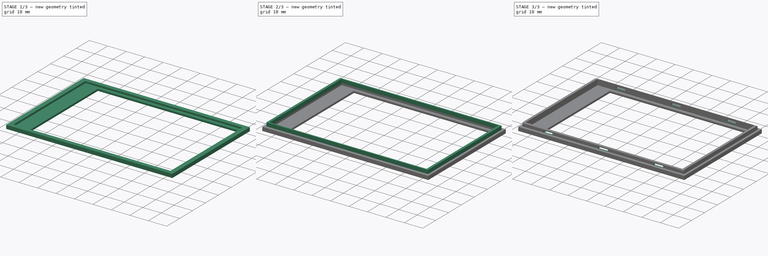
[diagram: build sequence overview — one tinted view per stage of 3, left to right]
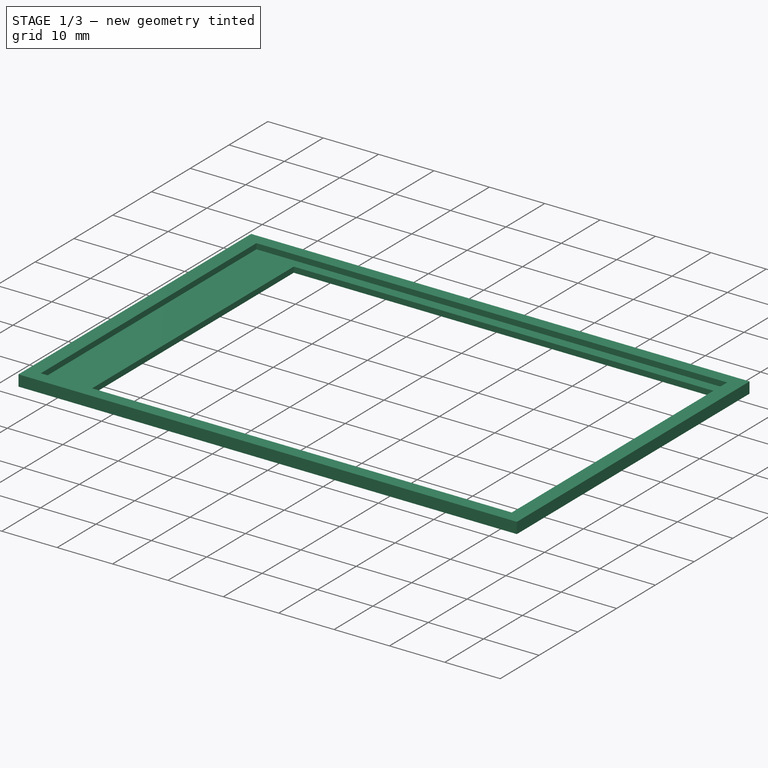
[diagram: stage 1 of 3 — iso view after this stage's code; geometry added in this stage tinted green]
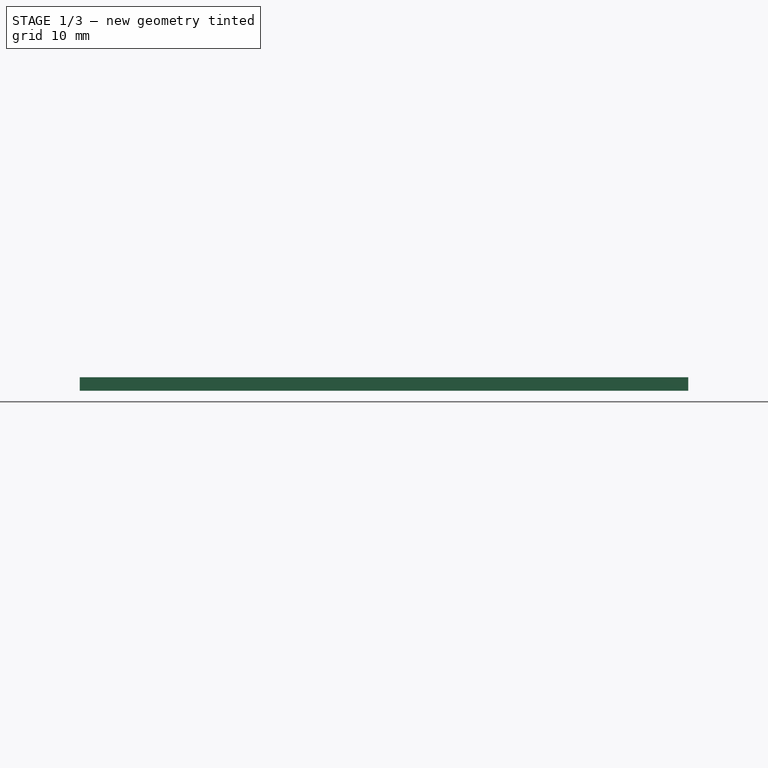
[diagram: stage 1 of 3 — front view after this stage's code; geometry added in this stage tinted green]
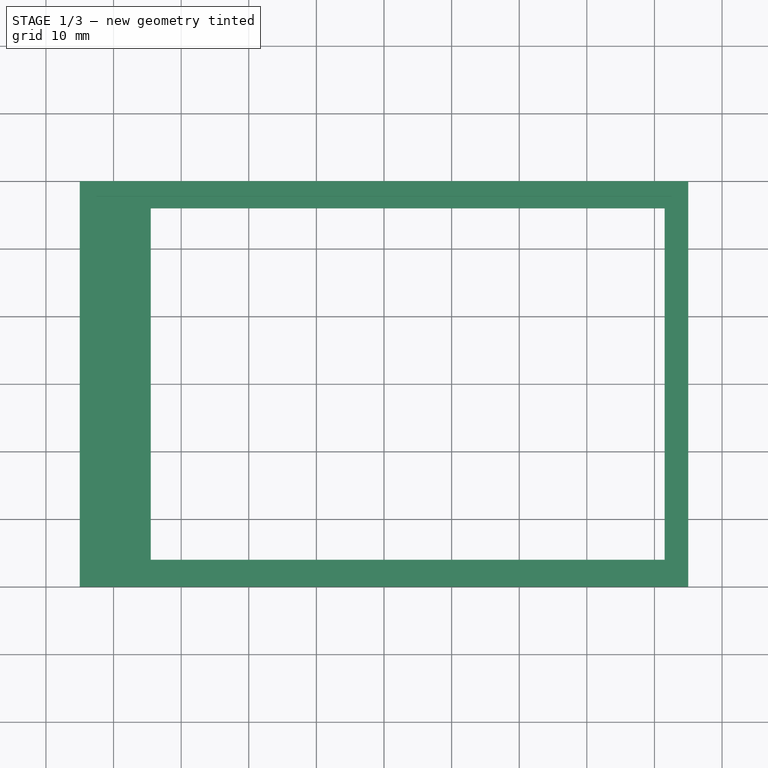
[diagram: stage 1 of 3 — top view after this stage's code; geometry added in this stage tinted green]
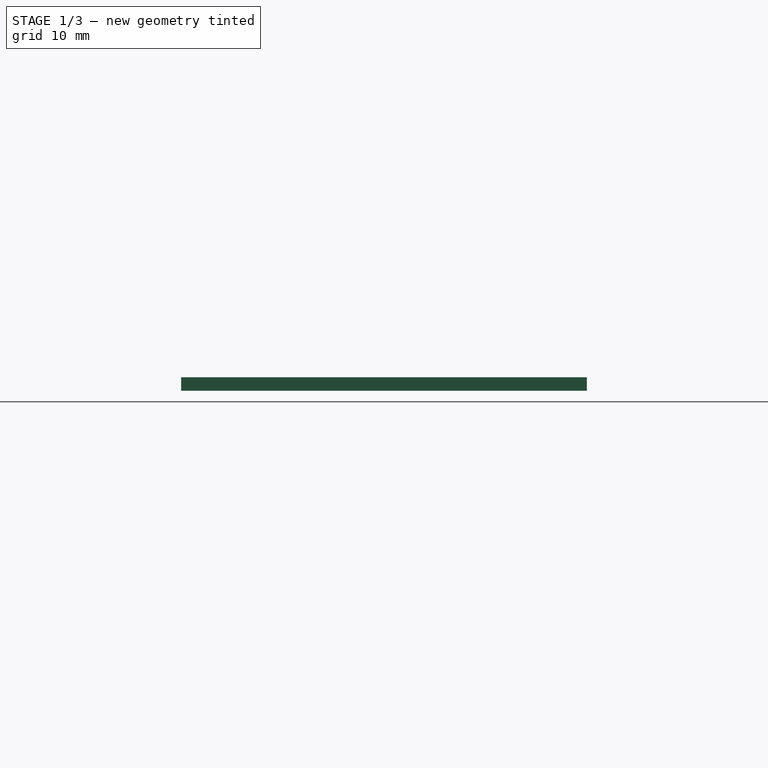
[diagram: stage 1 of 3 — right view after this stage's code; geometry added in this stage tinted green]
FCSTD DOCUMENT  (FreeCAD 0.16R6707 (Git))
Label: display_ws35b_top
License: All rights reserved
LicenseURL: http://en.wikipedia.org/wiki/All_rights_reserved
objects: Sketcher::SketchObject×4, PartDesign::Pad×3, PartDesign::Pocket×1, PartDesign::Chamfer×1
note: 13 computed .brp shape members not serialized (recipe doc carries the construction recipe); baked Part::Feature solids carry a one-line shape summary decoded from their .brp

FEATURE [Sketcher::SketchObject] Sketch
  sketch-geometry (8):
    g0: LineSegment StartX=-45 StartY=30 StartZ=0 EndX=45 EndY=30 EndZ=0
    g1: LineSegment StartX=45 StartY=30 StartZ=0 EndX=45 EndY=-30 EndZ=0
    g2: LineSegment StartX=45 StartY=-30 StartZ=0 EndX=-45 EndY=-30 EndZ=0
    g3: LineSegment StartX=-45 StartY=-30 StartZ=0 EndX=-45 EndY=30 EndZ=0
    g4: LineSegment StartX=-34.5 StartY=26 StartZ=0 EndX=41.5 EndY=26 EndZ=0
    g5: LineSegment StartX=41.5 StartY=26 StartZ=0 EndX=41.5 EndY=-26 EndZ=0
    g6: LineSegment StartX=41.5 StartY=-26 StartZ=0 EndX=-34.5 EndY=-26 EndZ=0
    g7: LineSegment StartX=-34.5 StartY=-26 StartZ=0 EndX=-34.5 EndY=26 EndZ=0
  constraints (24):
    c: Coincident(g0,g1)
    c: Coincident(g1,g2)
    c: Coincident(g2,g3)
    c: Coincident(g3,g0)
    c: Horizontal(g0)
    c: Horizontal(g2)
    c: Vertical(g1)
    c: Vertical(g3)
    c: Symmetric(g0,g0,g-2)
    c: Symmetric(g0,g1,g-1)
    c: DistanceX(g0,g0) = 90
    c: DistanceY(g1,g0) = 60
    c: Coincident(g4,g5)
    c: Coincident(g5,g6)
    c: Coincident(g6,g7)
    c: Coincident(g7,g4)
    c: Horizontal(g4)
    c: Horizontal(g6)
    c: Vertical(g5)
    c: Vertical(g7)
    c: Symmetric(g4,g5,g-1)
    c: DistanceX(g5,g1) = 3.5
    c: DistanceY(g1,g5) = 4
    c: DistanceX(g0,g4) = 10.5
FEATURE [PartDesign::Pad] Pad
  Length = 1
  Length2 = 100
  Sketch = -> Sketch
  Type = 0
FEATURE [Sketcher::SketchObject] Sketch001
  Placement = pos=(0,0,1) rot=(0,0,1;0rad)
  Support = -> Pad [Face10]
  sketch-geometry (8):
    g0: LineSegment StartX=-45 StartY=30 StartZ=0 EndX=45 EndY=30 EndZ=0
    g1: LineSegment StartX=45 StartY=30 StartZ=0 EndX=45 EndY=-30 EndZ=0
    g2: LineSegment StartX=45 StartY=-30 StartZ=0 EndX=-45 EndY=-30 EndZ=0
    g3: LineSegment StartX=-45 StartY=-30 StartZ=0 EndX=-45 EndY=30 EndZ=0
    g4: LineSegment StartX=-42.5 StartY=27.8 StartZ=0 EndX=42.5 EndY=27.8 EndZ=0
    g5: LineSegment StartX=42.5 StartY=27.8 StartZ=0 EndX=42.5 EndY=-27.8 EndZ=0
    g6: LineSegment StartX=42.5 StartY=-27.8 StartZ=0 EndX=-42.5 EndY=-27.8 EndZ=0
    g7: LineSegment StartX=-42.5 StartY=-27.8 StartZ=0 EndX=-42.5 EndY=27.8 EndZ=0
  constraints (24):
    c: Coincident(g0,g1)
    c: Coincident(g1,g2)
    c: Coincident(g2,g3)
    c: Coincident(g3,g0)
    c: Horizontal(g0)
    c: Horizontal(g2)
    c: Vertical(g1)
    c: Vertical(g3)
    c: Coincident(g4,g5)
    c: Coincident(g5,g6)
    c: Coincident(g6,g7)
    c: Coincident(g7,g4)
    c: Horizontal(g4)
    c: Horizontal(g6)
    c: Vertical(g5)
    c: Vertical(g7)
    c: Symmetric(g0,g0,g-2)
    c: Symmetric(g4,g4,g-2)
    c: Symmetric(g0,g2,g-1)
    c: Symmetric(g4,g6,g-1)
    c: DistanceX(g0,g0) = 90
    c: DistanceY(g1,g0) = 60
    c: DistanceX(g5,g1) = 2.5
    c: DistanceY(g1,g5) = 2.2
FEATURE [PartDesign::Pad] Pad001
  Length = 1
  Length2 = 100
  Sketch = -> Sketch001
  Type = 0
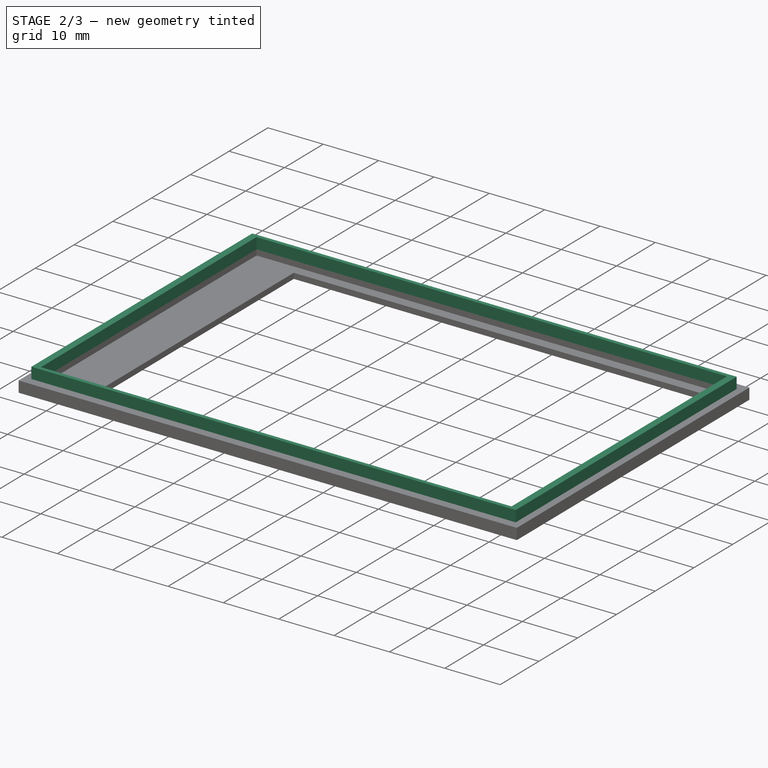
[diagram: stage 2 of 3 — iso view after this stage's code; geometry added in this stage tinted green]
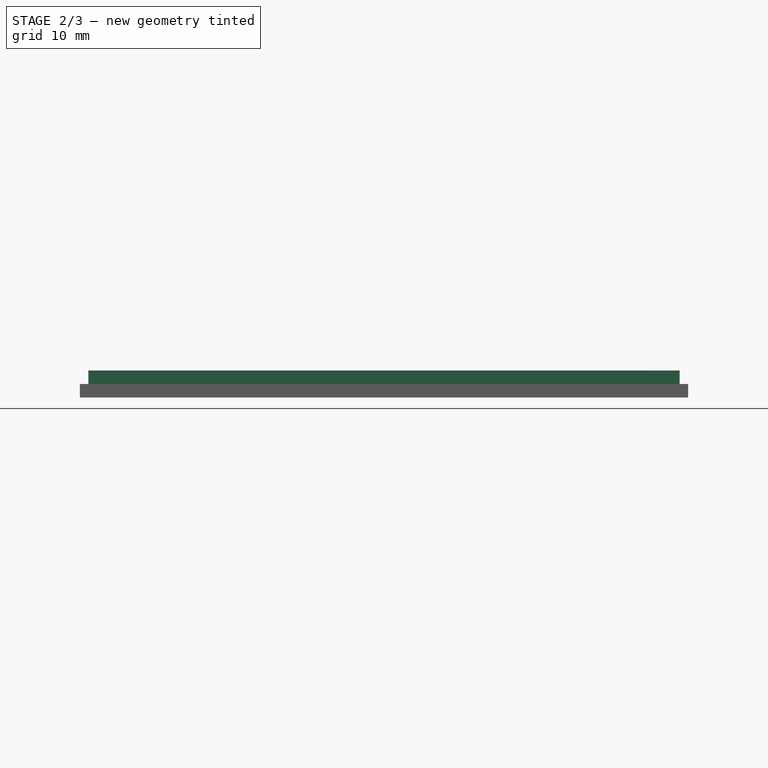
[diagram: stage 2 of 3 — front view after this stage's code; geometry added in this stage tinted green]
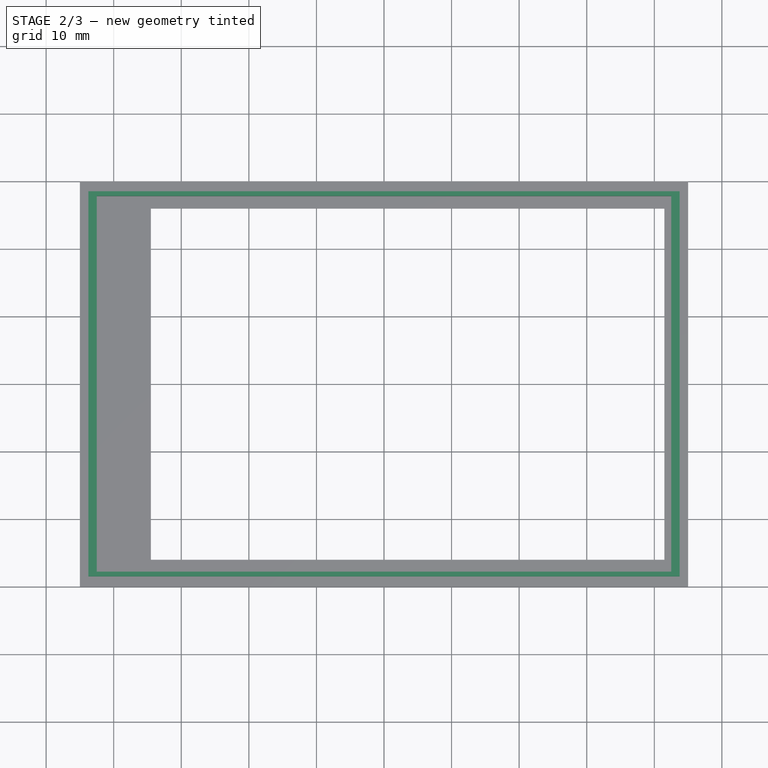
[diagram: stage 2 of 3 — top view after this stage's code; geometry added in this stage tinted green]
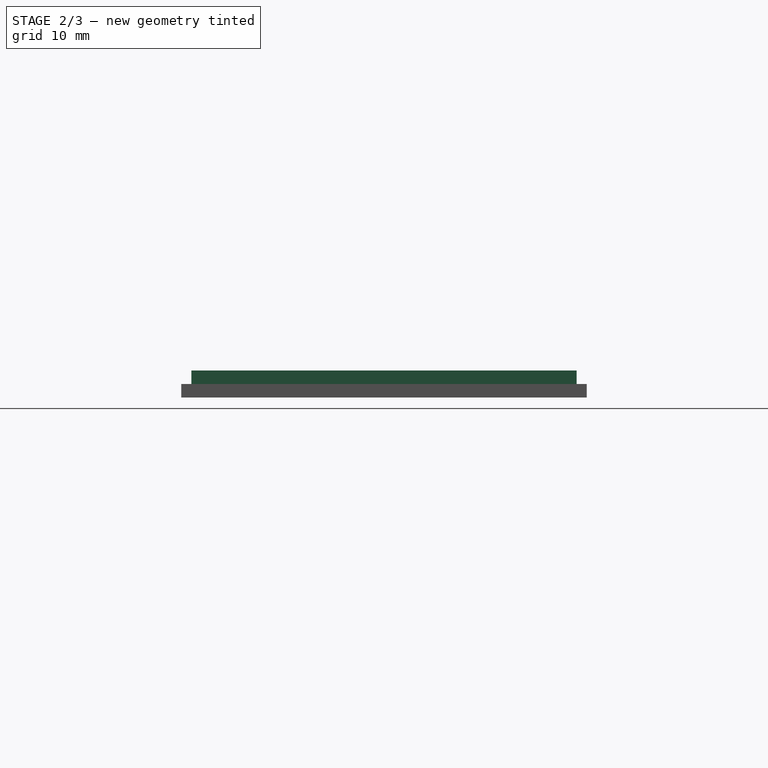
[diagram: stage 2 of 3 — right view after this stage's code; geometry added in this stage tinted green]
FEATURE [Sketcher::SketchObject] Sketch002
  Placement = pos=(0,0,2) rot=(0,0,1;0rad)
  Support = -> Pad001 [Face15]
  sketch-geometry (8):
    g0: LineSegment StartX=-43.75 StartY=28.5 StartZ=0 EndX=43.75 EndY=28.5 EndZ=0
    g1: LineSegment StartX=43.75 StartY=28.5 StartZ=0 EndX=43.75 EndY=-28.5 EndZ=0
    g2: LineSegment StartX=43.75 StartY=-28.5 StartZ=0 EndX=-43.75 EndY=-28.5 EndZ=0
    g3: LineSegment StartX=-43.75 StartY=-28.5 StartZ=0 EndX=-43.75 EndY=28.5 EndZ=0
    g4: LineSegment StartX=-42.5 StartY=27.8 StartZ=0 EndX=42.5 EndY=27.8 EndZ=0
    g5: LineSegment StartX=42.5 StartY=27.8 StartZ=0 EndX=42.5 EndY=-27.8 EndZ=0
    g6: LineSegment StartX=42.5 StartY=-27.8 StartZ=0 EndX=-42.5 EndY=-27.8 EndZ=0
    g7: LineSegment StartX=-42.5 StartY=-27.8 StartZ=0 EndX=-42.5 EndY=27.8 EndZ=0
  constraints (24):
    c: Coincident(g0,g1)
    c: Coincident(g1,g2)
    c: Coincident(g2,g3)
    c: Coincident(g3,g0)
    c: Horizontal(g0)
    c: Horizontal(g2)
    c: Vertical(g1)
    c: Vertical(g3)
    c: Coincident(g4,g5)
    c: Coincident(g5,g6)
    c: Coincident(g6,g7)
    c: Coincident(g7,g4)
    c: Horizontal(g4)
    c: Horizontal(g6)
    c: Vertical(g5)
    c: Vertical(g7)
    c: Symmetric(g4,g4,g-2)
    c: Symmetric(g0,g0,g-2)
    c: Symmetric(g5,g4,g-1)
    c: Symmetric(g0,g1,g-1)
    c: DistanceX(g0,g0) = 87.5
    c: DistanceY(g1,g0) = 57
    c: DistanceX(g4,g0) = 1.25
    c: DistanceY(g4,g0) = 0.7
FEATURE [PartDesign::Pad] Pad002
  Length = 2
  Length2 = 100
  Sketch = -> Sketch002
  Type = 0
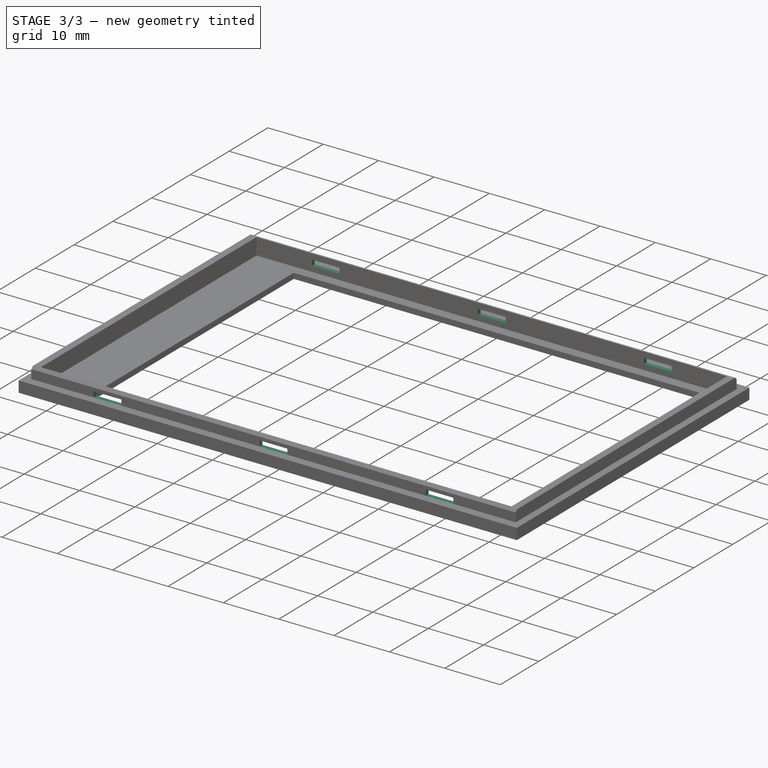
[diagram: stage 3 of 3 — iso view after this stage's code; geometry added in this stage tinted green]
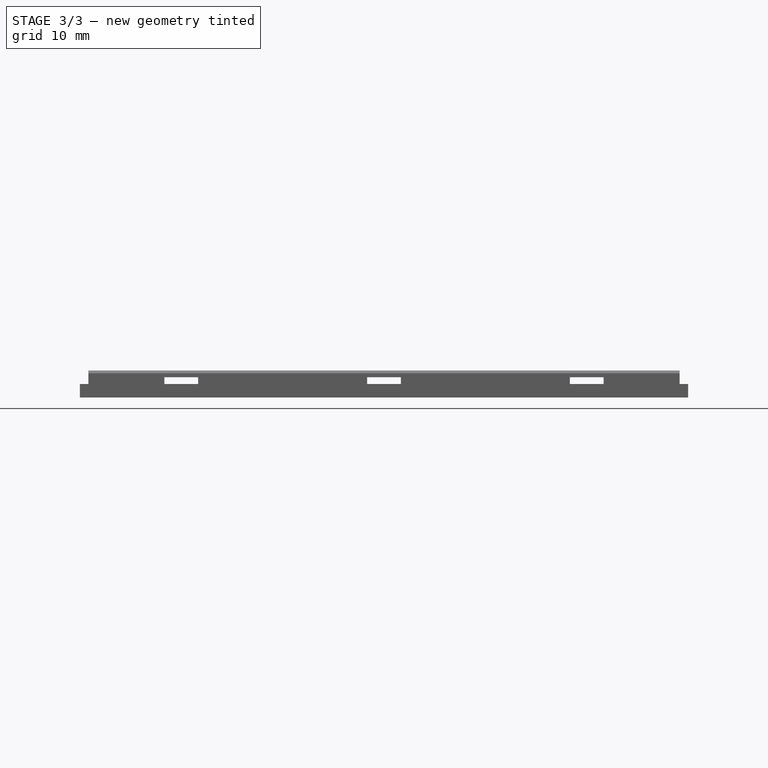
[diagram: stage 3 of 3 — front view after this stage's code; geometry added in this stage tinted green]
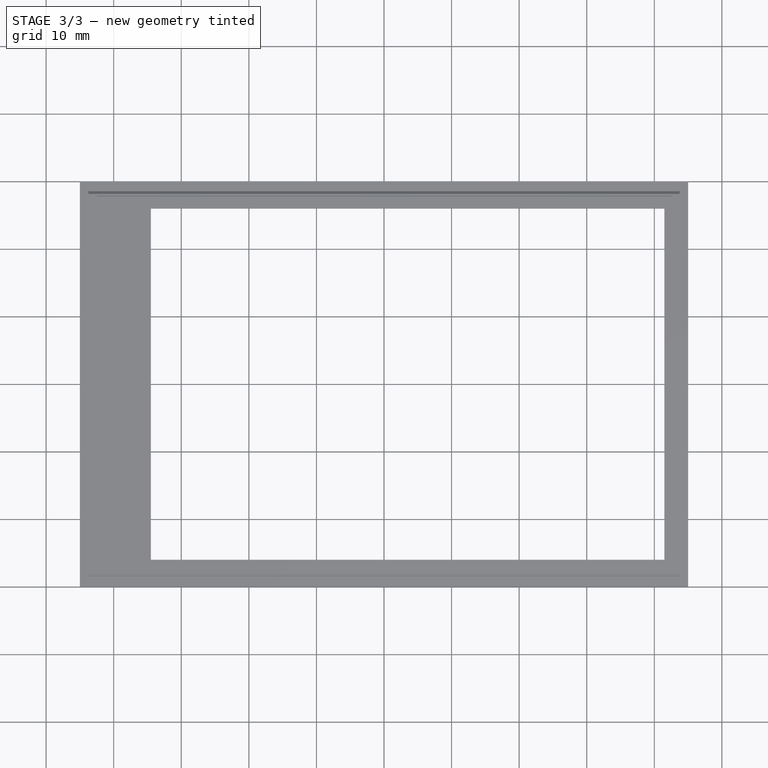
[diagram: stage 3 of 3 — top view after this stage's code; geometry added in this stage tinted green]
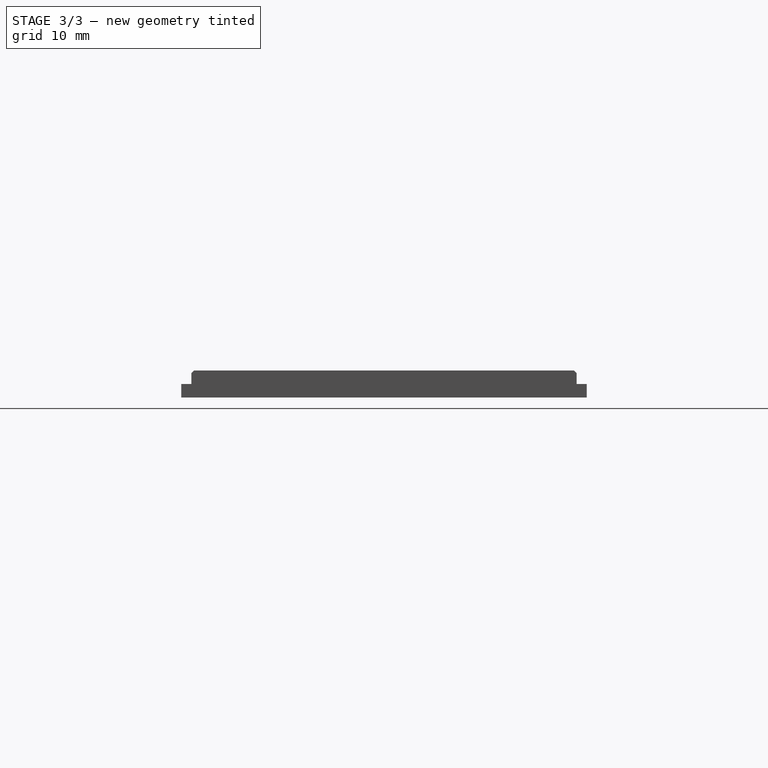
[diagram: stage 3 of 3 — right view after this stage's code; geometry added in this stage tinted green]
FEATURE [Sketcher::SketchObject] Sketch003
  Placement = pos=(0,-28.5,0) rot=(1,0,0;1.5708rad)
  Support = -> Pad002 [Face21]
  sketch-geometry (16):
    g0: LineSegment StartX=-32.5 StartY=3 StartZ=0 EndX=-27.5 EndY=3 EndZ=0
    g1: LineSegment StartX=-27.5 StartY=3 StartZ=0 EndX=-27.5 EndY=2 EndZ=0
    g2: LineSegment StartX=-27.5 StartY=2 StartZ=0 EndX=-32.5 EndY=2 EndZ=0
    g3: LineSegment StartX=-32.5 StartY=2 StartZ=0 EndX=-32.5 EndY=3 EndZ=0
    g4: LineSegment StartX=-2.5 StartY=3 StartZ=0 EndX=2.5 EndY=3 EndZ=0
    g5: LineSegment StartX=2.5 StartY=3 StartZ=0 EndX=2.5 EndY=2 EndZ=0
    g6: LineSegment StartX=2.5 StartY=2 StartZ=0 EndX=-2.5 EndY=2 EndZ=0
    g7: LineSegment StartX=-2.5 StartY=2 StartZ=0 EndX=-2.5 EndY=3 EndZ=0
    g8: LineSegment StartX=27.5 StartY=3 StartZ=0 EndX=32.5 EndY=3 EndZ=0
    g9: LineSegment StartX=32.5 StartY=3 StartZ=0 EndX=32.5 EndY=2 EndZ=0
    g10: LineSegment StartX=32.5 StartY=2 StartZ=0 EndX=27.5 EndY=2 EndZ=0
    g11: LineSegment StartX=27.5 StartY=2 StartZ=0 EndX=27.5 EndY=3 EndZ=0
    g12: LineSegment [constr] StartX=-27.5 StartY=3 StartZ=0 EndX=-2.5 EndY=3 EndZ=0
    g13: LineSegment [constr] StartX=-27.5 StartY=2 StartZ=0 EndX=-2.5 EndY=2 EndZ=0
    g14: LineSegment [constr] StartX=2.5 StartY=3 StartZ=0 EndX=27.5 EndY=3 EndZ=0
    g15: LineSegment [constr] StartX=2.5 StartY=2 StartZ=0 EndX=27.5 EndY=2 EndZ=0
  constraints (44):
    c: Coincident(g0,g1)
    c: Coincident(g1,g2)
    c: Coincident(g2,g3)
    c: Coincident(g3,g0)
    c: Horizontal(g0)
    c: Horizontal(g2)
    c: Vertical(g1)
    c: Vertical(g3)
    c: Coincident(g4,g5)
    c: Coincident(g5,g6)
    c: Coincident(g6,g7)
    c: Coincident(g7,g4)
    c: Horizontal(g4)
    c: Horizontal(g6)
    c: Vertical(g5)
    c: Vertical(g7)
    c: Coincident(g8,g9)
    c: Coincident(g9,g10)
    c: Coincident(g10,g11)
    c: Coincident(g11,g8)
    c: Horizontal(g8)
    c: Horizontal(g10)
    c: Vertical(g9)
    c: Vertical(g11)
    c: Coincident(g12,g0)
    c: Coincident(g12,g4)
    c: Horizontal(g12)
    c: Coincident(g13,g1)
    c: Coincident(g13,g6)
    c: Horizontal(g13)
    c: Coincident(g14,g4)
    c: Coincident(g14,g8)
    c: Horizontal(g14)
    c: Coincident(g15,g5)
    c: Coincident(g15,g10)
    c: Symmetric(g4,g4,g-2)
    c: Equal(g12,g14)
    c: Equal(g0,g4)
    c: Equal(g4,g8)
    c: DistanceX(g4,g4) = 5
    c: DistanceX(g12,g12) = 25
    c: DistanceY(g9,g8) = 1
    c: DistanceY(g-1,g8) = 3
    c: Horizontal(g15)
FEATURE [PartDesign::Pocket] Pocket
  Length = 5
  Sketch = -> Sketch003
  Type = 1
FEATURE [PartDesign::Chamfer] Chamfer
  Base = -> Pocket [Edge108,Edge95]
  Size = 0.4
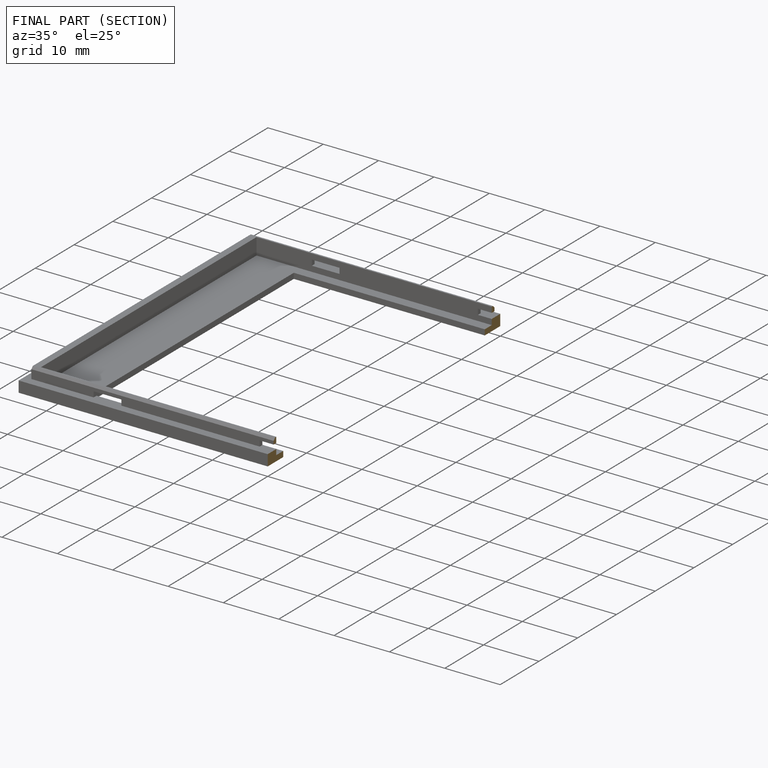
[diagram: finished part — half-section view (interior)]
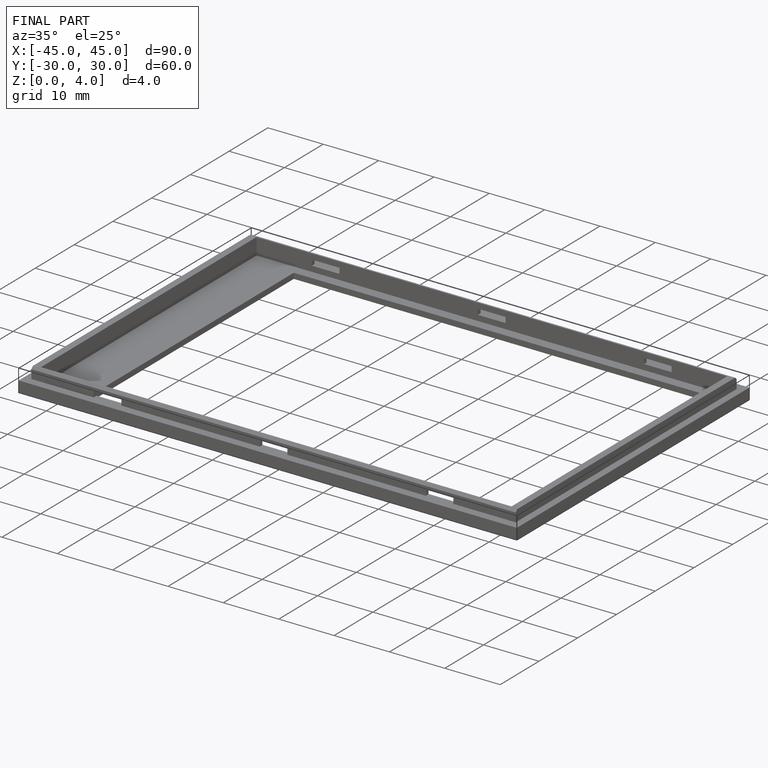
[diagram: finished part — iso view with bounding-box wireframe]
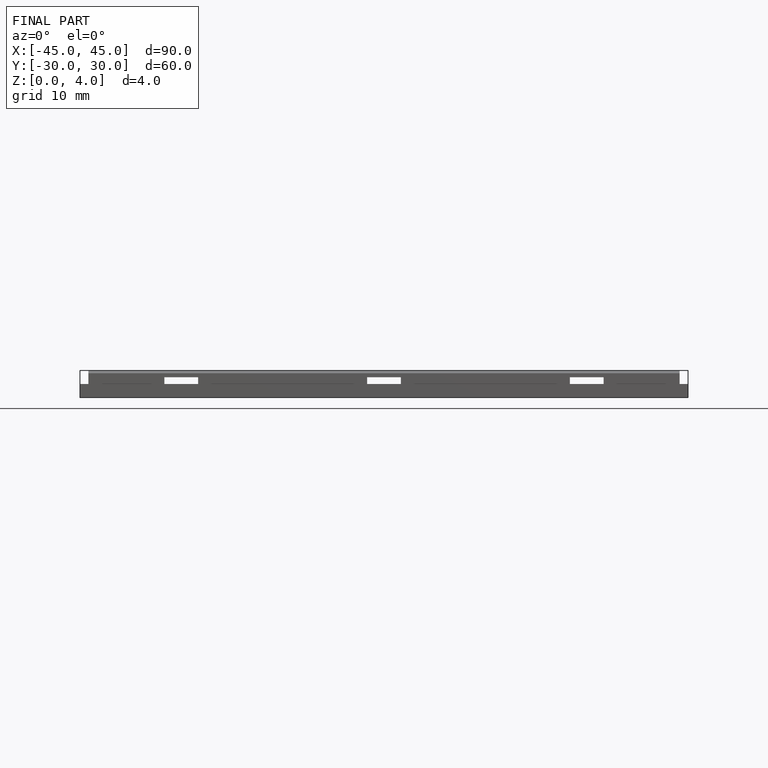
[diagram: finished part — front view with bounding-box wireframe]
